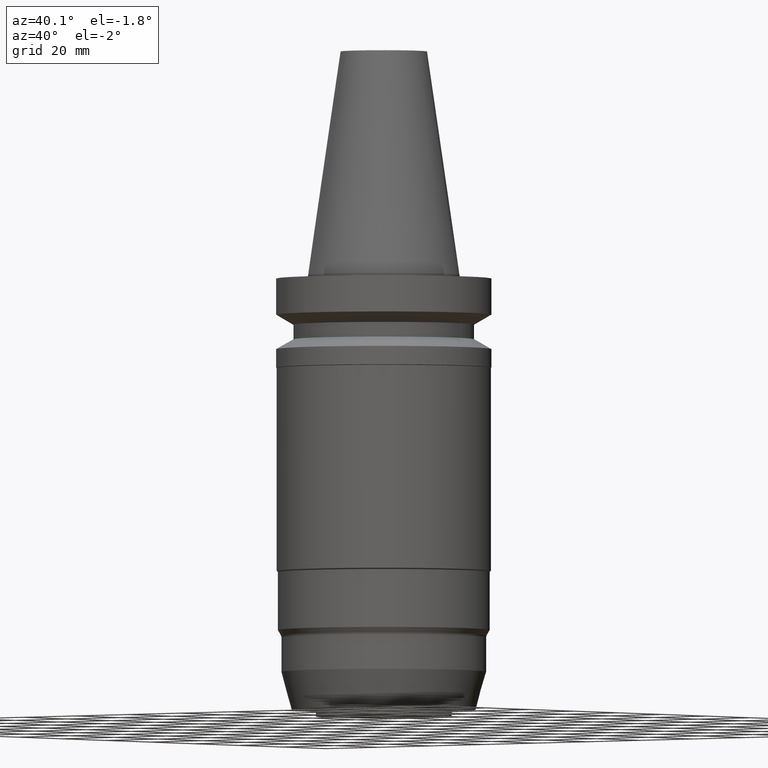
[diagram: clean part render]
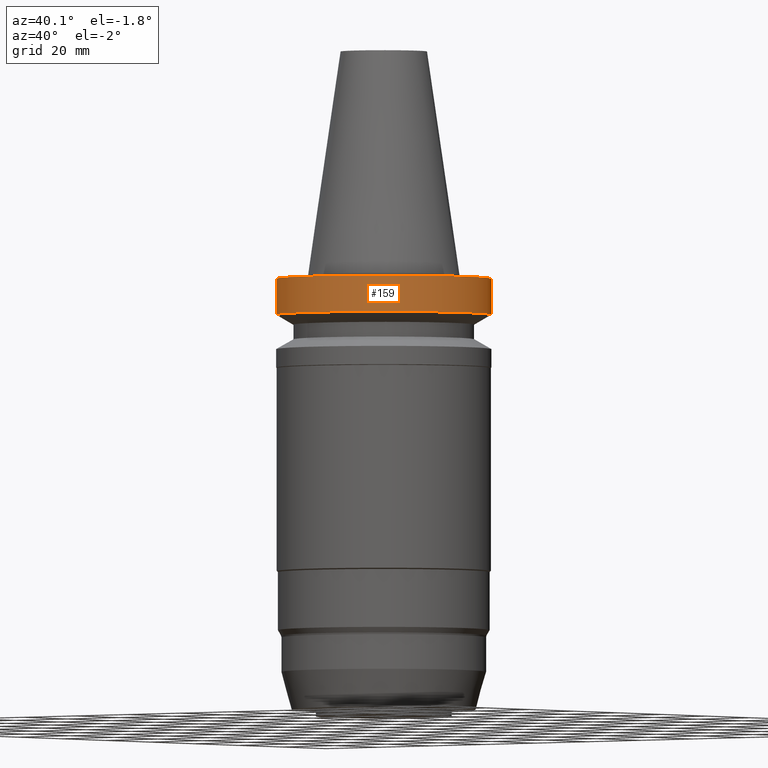
[diagram: same view with one face highlighted and labeled with its STEP entity id]
A machine part, auxiliary view. The second image highlights one B-rep face of the part: STEP entity #159.
In plain terms, the highlighted cylindrical surface (bore or boss wall) has radius 31.5 mm, axis along (0, -0, -1).
Its self-contained STEP definition (entity closure, byte-faithful):
#79=EDGE_CURVE('Unnamed[1]',#204,#204,#205,.T.);
#127=EDGE_CURVE('Unnamed[1]',#280,#280,#281,.T.);
#159=ADVANCED_FACE('Unnamed[1]',(#329,#330),#331,.T.);
#204=VERTEX_POINT('',#375);
#205=CIRCLE('',#376,31.4999999999996);
#280=VERTEX_POINT('',#470);
#281=CIRCLE('',#471,31.5000000000003);
#329=FACE_BOUND('',#530,.T.);
#330=FACE_BOUND('',#531,.T.);
#331=CYLINDRICAL_SURFACE('',#532,31.5);
#375=CARTESIAN_POINT('',(6.12323399573568E-017,31.4999999999997,-0.999999999999825));
#376=AXIS2_PLACEMENT_3D('',#568,#569,#570);
#470=CARTESIAN_POINT('',(7.08182973902924E-016,31.5000000000004,-11.5655056526664));
#471=AXIS2_PLACEMENT_3D('',#654,#655,#656);
#530=EDGE_LOOP('',(#707));
#531=EDGE_LOOP('',(#708));
#532=AXIS2_PLACEMENT_3D('',#709,#710,#711);
#568=CARTESIAN_POINT('',(6.12323399573572E-017,7.33080271473553E-014,-0.999999999999829));
#569=DIRECTION('',(6.12323399573677E-017,-5.7274749351781E-017,-1.0));
#570=DIRECTION('',(-1.32008580750072E-033,1.0,-5.7274749351781E-017));
#654=CARTESIAN_POINT('',(7.08182973902924E-016,7.27028904593246E-014,-11.5655056526664));
#655=DIRECTION('',(6.12323399573677E-017,-5.72747493517797E-017,-1.0));
#656=DIRECTION('',(-1.3200858075007E-033,1.0,-5.72747493517797E-017));
#707=ORIENTED_EDGE('',*,*,#127,.F.);
#708=ORIENTED_EDGE('',*,*,#79,.T.);
#709=CARTESIAN_POINT('',(3.84707656930141E-016,7.300545880334E-014,-6.28275282633309));
#710=DIRECTION('',(6.12323399573676E-017,-5.72747493517803E-017,-1.0));
#711=DIRECTION('',(-1.32008580748932E-033,1.0,-5.72747493517803E-017));